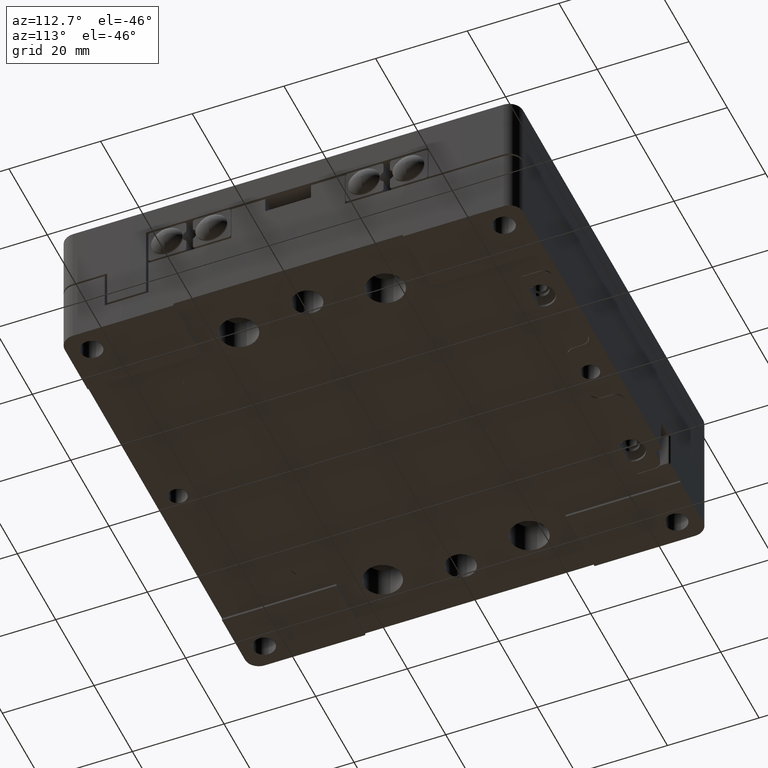
[diagram: clean part render]
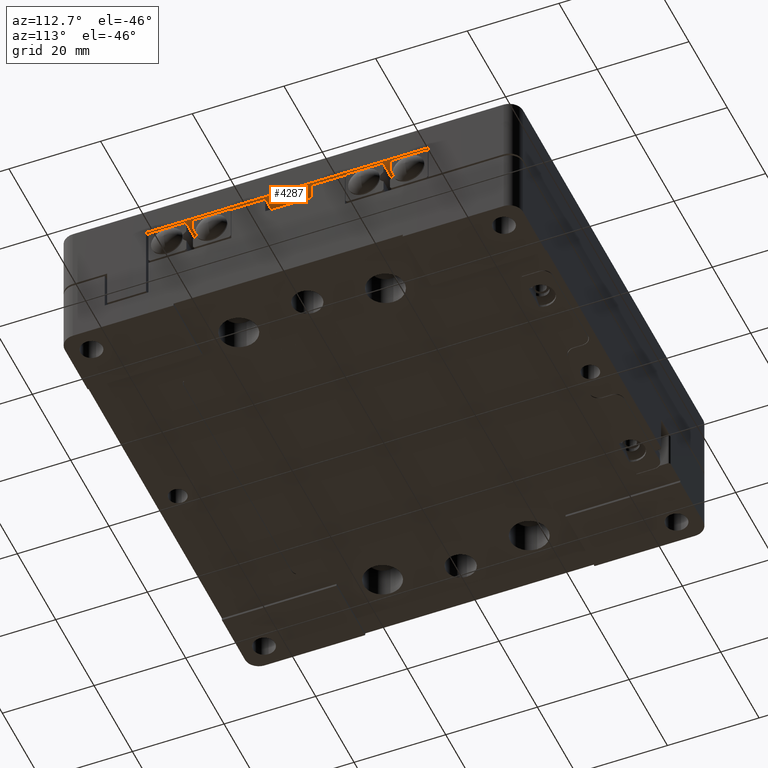
[diagram: same view with one face highlighted and labeled with its STEP entity id]
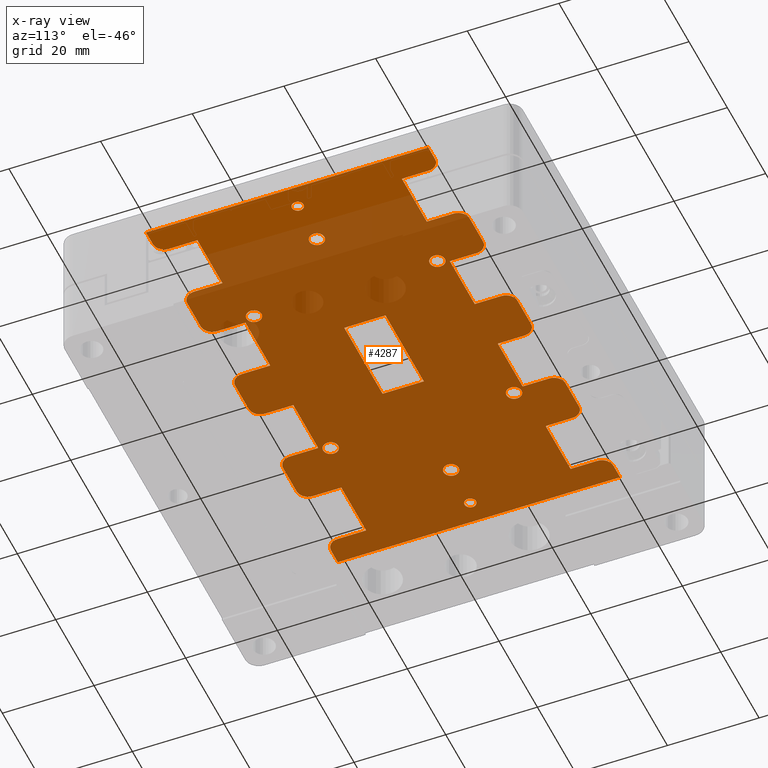
[diagram: x-ray of the same camera — body ghosted, the highlighted face saturated]
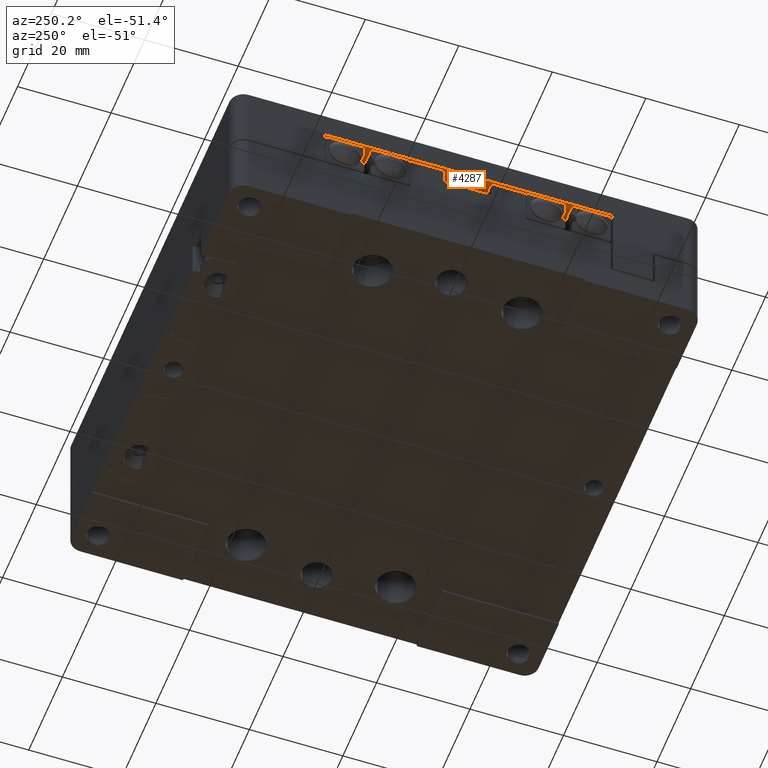
[diagram: same view with one face highlighted and labeled with its STEP entity id]
A machine part, auxiliary view. The second image highlights one B-rep face of the part: STEP entity #4287.
The next image is the same camera in x-ray: the body ghosted, the highlighted face saturated — about 89% of this face is hidden behind the body in this view.
A second angle (auxiliary view) of the same face is appended — the face is thin or edge-on in the first view.
In plain terms, the highlighted planar face has unit normal (0, 0, -1).
Its self-contained STEP definition (entity closure, byte-faithful):
#74 = DIRECTION ( 'NONE',  ( -1.000000000000000000, 0.000000000000000000, 0.000000000000000000 ) ) ;
#96 = DIRECTION ( 'NONE',  ( -1.000000000000000000, 0.000000000000000000, 0.000000000000000000 ) ) ;
#116 = CIRCLE ( 'NONE', #17940, 1.649999999999998579 ) ;
#146 = ORIENTED_EDGE ( 'NONE', *, *, #10678, .T. ) ;
#187 = VECTOR ( 'NONE', #15721, 1000.000000000000000 ) ;
#273 = VERTEX_POINT ( 'NONE', #24749 ) ;
#338 = DIRECTION ( 'NONE',  ( 0.000000000000000000, 0.000000000000000000, -1.000000000000000000 ) ) ;
#382 = LINE ( 'NONE', #7058, #16938 ) ;
#383 = LINE ( 'NONE', #23991, #20046 ) ;
#450 = DIRECTION ( 'NONE',  ( 1.000000000000000000, 0.000000000000000000, 0.000000000000000000 ) ) ;
#545 = ORIENTED_EDGE ( 'NONE', *, *, #12726, .T. ) ;
#651 = CARTESIAN_POINT ( 'NONE',  ( -50.00000000000000000, -22.30000000000000071, 9.000000000000000000 ) ) ;
#661 = VERTEX_POINT ( 'NONE', #9601 ) ;
#681 = VECTOR ( 'NONE', #4337, 1000.000000000000000 ) ;
#721 = DIRECTION ( 'NONE',  ( 1.000000000000000000, 0.000000000000000000, 0.000000000000000000 ) ) ;
#735 = CARTESIAN_POINT ( 'NONE',  ( 50.00000000000000000, -31.00000000000000000, 9.000000000000000000 ) ) ;
#788 = VERTEX_POINT ( 'NONE', #14887 ) ;
#795 = CARTESIAN_POINT ( 'NONE',  ( 46.50000000000000000, 30.59999999999999787, 9.000000000000000000 ) ) ;
#834 = VERTEX_POINT ( 'NONE', #3993 ) ;
#847 = ORIENTED_EDGE ( 'NONE', *, *, #17546, .T. ) ;
#893 = ORIENTED_EDGE ( 'NONE', *, *, #18476, .T. ) ;
#896 = VECTOR ( 'NONE', #26778, 1000.000000000000000 ) ;
#912 = AXIS2_PLACEMENT_3D ( 'NONE', #2799, #17471, #4767 ) ;
#915 = CIRCLE ( 'NONE', #11609, 2.499999999999998668 ) ;
#918 = EDGE_CURVE ( 'NONE', #27422, #19686, #23576, .T. ) ;
#933 = LINE ( 'NONE', #23996, #12259 ) ;
#1055 = ORIENTED_EDGE ( 'NONE', *, *, #27630, .T. ) ;
#1070 = ORIENTED_EDGE ( 'NONE', *, *, #7344, .T. ) ;
#1109 = AXIS2_PLACEMENT_3D ( 'NONE', #20950, #8494, #17005 ) ;
#1141 = VERTEX_POINT ( 'NONE', #9300 ) ;
#1166 = EDGE_CURVE ( 'NONE', #22428, #24520, #3280, .T. ) ;
#1333 = DIRECTION ( 'NONE',  ( -1.000000000000000000, 0.000000000000000000, 0.000000000000000000 ) ) ;
#1336 = DIRECTION ( 'NONE',  ( 0.000000000000000000, 1.000000000000000000, 0.000000000000000000 ) ) ;
#1343 = CARTESIAN_POINT ( 'NONE',  ( -21.50000000000000000, -31.00000000000000000, 9.000000000000000000 ) ) ;
#1445 = CARTESIAN_POINT ( 'NONE',  ( -3.500000000000000000, 30.59999999999999787, 9.000000000000000000 ) ) ;
#1466 = ORIENTED_EDGE ( 'NONE', *, *, #17801, .T. ) ;
#1469 = ORIENTED_EDGE ( 'NONE', *, *, #10199, .T. ) ;
#1529 = DIRECTION ( 'NONE',  ( 0.000000000000000000, 0.000000000000000000, -1.000000000000000000 ) ) ;
#1850 = ORIENTED_EDGE ( 'NONE', *, *, #3730, .T. ) ;
#1913 = DIRECTION ( 'NONE',  ( 0.000000000000000000, 0.000000000000000000, 1.000000000000000000 ) ) ;
#1952 = CIRCLE ( 'NONE', #4174, 1.649999999999998579 ) ;
#2005 = ORIENTED_EDGE ( 'NONE', *, *, #27070, .T. ) ;
#2075 = DIRECTION ( 'NONE',  ( 1.000000000000000000, 0.000000000000000000, 0.000000000000000000 ) ) ;
#2150 = CARTESIAN_POINT ( 'NONE',  ( -31.00000000000000000, -50.00000000000000000, 9.000000000000000000 ) ) ;
#2173 = DIRECTION ( 'NONE',  ( 0.000000000000000000, -1.000000000000000000, 0.000000000000000000 ) ) ;
#2175 = LINE ( 'NONE', #24746, #4423 ) ;
#2224 = CIRCLE ( 'NONE', #912, 1.250000000000001110 ) ;
#2256 = ORIENTED_EDGE ( 'NONE', *, *, #12973, .T. ) ;
#2262 = CARTESIAN_POINT ( 'NONE',  ( 21.50000000000000000, -28.50000000000000000, 9.000000000000000000 ) ) ;
#2404 = CIRCLE ( 'NONE', #7315, 1.250000000000001110 ) ;
#2427 = CIRCLE ( 'NONE', #1109, 2.499999999999998668 ) ;
#2538 = CARTESIAN_POINT ( 'NONE',  ( 6.000000000000000000, -22.30000000000000071, 9.000000000000000000 ) ) ;
#2552 = CARTESIAN_POINT ( 'NONE',  ( -36.64999999999999858, 2.020667218593134974E-16, 9.000000000000000000 ) ) ;
#2579 = CARTESIAN_POINT ( 'NONE',  ( 46.50000000000000000, -31.00000000000000000, 9.000000000000000000 ) ) ;
#2591 = DIRECTION ( 'NONE',  ( 1.000000000000000000, 0.000000000000000000, 0.000000000000000000 ) ) ;
#2709 = VECTOR ( 'NONE', #21203, 1000.000000000000000 ) ;
#2722 = DIRECTION ( 'NONE',  ( 0.000000000000000000, 0.000000000000000000, -1.000000000000000000 ) ) ;
#2733 = ORIENTED_EDGE ( 'NONE', *, *, #13328, .T. ) ;
#2735 = ORIENTED_EDGE ( 'NONE', *, *, #7420, .T. ) ;
#2799 = CARTESIAN_POINT ( 'NONE',  ( 45.00000000000000000, 0.000000000000000000, 9.000000000000000000 ) ) ;
#2858 = CARTESIAN_POINT ( 'NONE',  ( 46.25000000000000000, 1.530808498934190091E-16, 9.000000000000000000 ) ) ;
#2859 = VECTOR ( 'NONE', #721, 1000.000000000000000 ) ;
#2869 = VERTEX_POINT ( 'NONE', #17797 ) ;
#2961 = VECTOR ( 'NONE', #15273, 1000.000000000000000 ) ;
#2999 = VERTEX_POINT ( 'NONE', #8541 ) ;
#3054 = LINE ( 'NONE', #15631, #12775 ) ;
#3069 = CARTESIAN_POINT ( 'NONE',  ( -50.00000000000000000, -31.00000000000000000, 9.000000000000000000 ) ) ;
#3111 = VERTEX_POINT ( 'NONE', #2538 ) ;
#3143 = CARTESIAN_POINT ( 'NONE',  ( 31.00000000000000000, -28.50000000000000000, 9.000000000000000000 ) ) ;
#3153 = EDGE_CURVE ( 'NONE', #6749, #15535, #17764, .T. ) ;
#3155 = DIRECTION ( 'NONE',  ( 0.000000000000000000, 0.000000000000000000, 1.000000000000000000 ) ) ;
#3157 = CIRCLE ( 'NONE', #13843, 1.649999999999998579 ) ;
#3178 = DIRECTION ( 'NONE',  ( 0.000000000000000000, -1.000000000000000000, 0.000000000000000000 ) ) ;
#3199 = CARTESIAN_POINT ( 'NONE',  ( -19.00000000000000000, 28.10000000000000142, 9.000000000000000000 ) ) ;
#3253 = CIRCLE ( 'NONE', #10838, 1.649999999999998579 ) ;
#3280 = LINE ( 'NONE', #26371, #187 ) ;
#3367 = CIRCLE ( 'NONE', #5153, 1.649999999999998579 ) ;
#3400 = ORIENTED_EDGE ( 'NONE', *, *, #14237, .T. ) ;
#3412 = LINE ( 'NONE', #13475, #896 ) ;
#3485 = ORIENTED_EDGE ( 'NONE', *, *, #7486, .T. ) ;
#3548 = DIRECTION ( 'NONE',  ( -1.000000000000000000, 0.000000000000000000, 0.000000000000000000 ) ) ;
#3591 = CARTESIAN_POINT ( 'NONE',  ( -31.00000000000000000, -22.30000000000000071, 9.000000000000000000 ) ) ;
#3601 = DIRECTION ( 'NONE',  ( 0.000000000000000000, -1.000000000000000000, 0.000000000000000000 ) ) ;
#3669 = DIRECTION ( 'NONE',  ( 0.000000000000000000, 0.000000000000000000, -1.000000000000000000 ) ) ;
#3678 = ORIENTED_EDGE ( 'NONE', *, *, #20622, .T. ) ;
#3730 = EDGE_CURVE ( 'NONE', #834, #27422, #16716, .T. ) ;
#3740 = FACE_BOUND ( 'NONE', #12537, .T. ) ;
#3814 = LINE ( 'NONE', #18495, #7718 ) ;
#3923 = VERTEX_POINT ( 'NONE', #20839 ) ;
#3948 = CARTESIAN_POINT ( 'NONE',  ( 31.00000000000000000, -50.00000000000000000, 9.000000000000000000 ) ) ;
#3956 = ORIENTED_EDGE ( 'NONE', *, *, #20305, .T. ) ;
#3976 = CIRCLE ( 'NONE', #22319, 2.500000000000002220 ) ;
#3985 = CARTESIAN_POINT ( 'NONE',  ( 19.00000000000000000, -50.00000000000000000, 9.000000000000000000 ) ) ;
#3993 = CARTESIAN_POINT ( 'NONE',  ( -6.000000000000000000, 28.10000000000000142, 9.000000000000000000 ) ) ;
#3994 = CARTESIAN_POINT ( 'NONE',  ( 44.00000000000000000, 28.10000000000000142, 9.000000000000000000 ) ) ;
#3997 = EDGE_LOOP ( 'NONE', ( #23752, #146 ) ) ;
#4137 = CARTESIAN_POINT ( 'NONE',  ( -35.00000000000000000, 0.000000000000000000, 9.000000000000000000 ) ) ;
#4174 = AXIS2_PLACEMENT_3D ( 'NONE', #20592, #24800, #5627 ) ;
#4205 = LINE ( 'NONE', #4482, #17561 ) ;
#4287 = ADVANCED_FACE ( 'NONE', ( #19108, #3740, #27510, #27103, #21075, #12521, #18561, #16998, #25007, #5834 ), #14348, .T. ) ;
#4337 = DIRECTION ( 'NONE',  ( 1.000000000000000000, 0.000000000000000000, 0.000000000000000000 ) ) ;
#4341 = LINE ( 'NONE', #10768, #5081 ) ;
#4364 = DIRECTION ( 'NONE',  ( 0.000000000000000000, -1.000000000000000000, 0.000000000000000000 ) ) ;
#4403 = DIRECTION ( 'NONE',  ( 0.000000000000000000, 1.000000000000000000, 0.000000000000000000 ) ) ;
#4414 = VERTEX_POINT ( 'NONE', #21493 ) ;
#4423 = VECTOR ( 'NONE', #5580, 1000.000000000000000 ) ;
#4450 = CARTESIAN_POINT ( 'NONE',  ( -50.00000000000000000, -31.00000000000000000, 9.000000000000000000 ) ) ;
#4479 = VERTEX_POINT ( 'NONE', #21642 ) ;
#4482 = CARTESIAN_POINT ( 'NONE',  ( -50.00000000000000000, -31.00000000000000000, 9.000000000000000000 ) ) ;
#4579 = AXIS2_PLACEMENT_3D ( 'NONE', #10975, #25816, #8739 ) ;
#4609 = DIRECTION ( 'NONE',  ( -1.000000000000000000, 0.000000000000000000, 0.000000000000000000 ) ) ;
#4631 = ORIENTED_EDGE ( 'NONE', *, *, #1166, .T. ) ;
#4687 = LINE ( 'NONE', #23419, #18689 ) ;
#4767 = DIRECTION ( 'NONE',  ( -1.000000000000000000, 0.000000000000000000, 0.000000000000000000 ) ) ;
#4806 = CARTESIAN_POINT ( 'NONE',  ( -50.00000000000000000, -22.30000000000000071, 9.000000000000000000 ) ) ;
#4914 = DIRECTION ( 'NONE',  ( -1.000000000000000000, 0.000000000000000000, 0.000000000000000000 ) ) ;
#5081 = VECTOR ( 'NONE', #19293, 1000.000000000000000 ) ;
#5096 = DIRECTION ( 'NONE',  ( 0.000000000000000000, 0.000000000000000000, -1.000000000000000000 ) ) ;
#5104 = DIRECTION ( 'NONE',  ( 1.000000000000000000, 0.000000000000000000, 0.000000000000000000 ) ) ;
#5112 = CARTESIAN_POINT ( 'NONE',  ( -31.00000000000000000, -50.00000000000000000, 9.000000000000000000 ) ) ;
#5153 = AXIS2_PLACEMENT_3D ( 'NONE', #27089, #10152, #22476 ) ;
#5170 = VECTOR ( 'NONE', #9233, 1000.000000000000000 ) ;
#5215 = EDGE_CURVE ( 'NONE', #26739, #2999, #27538, .T. ) ;
#5327 = DIRECTION ( 'NONE',  ( 0.000000000000000000, -1.000000000000000000, 0.000000000000000000 ) ) ;
#5362 = ORIENTED_EDGE ( 'NONE', *, *, #19632, .T. ) ;
#5479 = DIRECTION ( 'NONE',  ( 0.000000000000000000, 0.000000000000000000, 1.000000000000000000 ) ) ;
#5487 = VECTOR ( 'NONE', #7065, 1000.000000000000000 ) ;
#5506 = CARTESIAN_POINT ( 'NONE',  ( 46.50000000000000000, 28.10000000000000142, 9.000000000000000000 ) ) ;
#5573 = CARTESIAN_POINT ( 'NONE',  ( 31.00000000000000000, -22.30000000000000071, 9.000000000000000000 ) ) ;
#5580 = DIRECTION ( 'NONE',  ( 0.000000000000000000, -1.000000000000000000, 0.000000000000000000 ) ) ;
#5610 = EDGE_LOOP ( 'NONE', ( #9266, #14396 ) ) ;
#5627 = DIRECTION ( 'NONE',  ( 1.000000000000000000, 0.000000000000000000, 0.000000000000000000 ) ) ;
#5637 = CARTESIAN_POINT ( 'NONE',  ( -46.25000000000000000, 0.000000000000000000, 9.000000000000000000 ) ) ;
#5641 = CARTESIAN_POINT ( 'NONE',  ( 46.50000000000000000, -28.50000000000000000, 9.000000000000000000 ) ) ;
#5651 = DIRECTION ( 'NONE',  ( 0.000000000000000000, 0.000000000000000000, 1.000000000000000000 ) ) ;
#5674 = CARTESIAN_POINT ( 'NONE',  ( -10.00000000000000000, 4.500000000000000000, 9.000000000000000000 ) ) ;
#5736 = CARTESIAN_POINT ( 'NONE',  ( 19.00000000000000000, -22.30000000000000071, 9.000000000000000000 ) ) ;
#5767 = AXIS2_PLACEMENT_3D ( 'NONE', #5506, #7600, #18235 ) ;
#5834 = FACE_BOUND ( 'NONE', #3997, .T. ) ;
#5852 = EDGE_LOOP ( 'NONE', ( #10848, #893, #14268, #17051 ) ) ;
#6094 = ORIENTED_EDGE ( 'NONE', *, *, #9280, .T. ) ;
#6095 = LINE ( 'NONE', #12647, #2709 ) ;
#6208 = CIRCLE ( 'NONE', #27200, 1.649999999999998579 ) ;
#6247 = EDGE_CURVE ( 'NONE', #16569, #3111, #11240, .T. ) ;
#6296 = DIRECTION ( 'NONE',  ( -1.000000000000000000, 0.000000000000000000, 0.000000000000000000 ) ) ;
#6297 = DIRECTION ( 'NONE',  ( 0.000000000000000000, 0.000000000000000000, -1.000000000000000000 ) ) ;
#6323 = VERTEX_POINT ( 'NONE', #17809 ) ;
#6387 = AXIS2_PLACEMENT_3D ( 'NONE', #21162, #10947, #16947 ) ;
#6414 = VECTOR ( 'NONE', #16083, 1000.000000000000000 ) ;
#6429 = DIRECTION ( 'NONE',  ( 1.000000000000000000, 0.000000000000000000, 0.000000000000000000 ) ) ;
#6584 = DIRECTION ( 'NONE',  ( -1.000000000000000000, 0.000000000000000000, 0.000000000000000000 ) ) ;
#6609 = DIRECTION ( 'NONE',  ( 1.000000000000000000, 0.000000000000000000, 0.000000000000000000 ) ) ;
#6617 = VERTEX_POINT ( 'NONE', #8980 ) ;
#6695 = ORIENTED_EDGE ( 'NONE', *, *, #16384, .T. ) ;
#6712 = CARTESIAN_POINT ( 'NONE',  ( -50.00000000000000000, 22.30000000000000071, 9.000000000000000000 ) ) ;
#6749 = VERTEX_POINT ( 'NONE', #22544 ) ;
#6919 = CIRCLE ( 'NONE', #20710, 2.499999999999998668 ) ;
#6929 = VERTEX_POINT ( 'NONE', #20985 ) ;
#6958 = CARTESIAN_POINT ( 'NONE',  ( -19.00000000000000000, -50.00000000000000000, 9.000000000000000000 ) ) ;
#6971 = VERTEX_POINT ( 'NONE', #18607 ) ;
#6984 = EDGE_LOOP ( 'NONE', ( #1466, #3956 ) ) ;
#7058 = CARTESIAN_POINT ( 'NONE',  ( -6.000000000000000000, -50.00000000000000000, 9.000000000000000000 ) ) ;
#7065 = DIRECTION ( 'NONE',  ( 1.000000000000000000, 0.000000000000000000, 0.000000000000000000 ) ) ;
#7125 = DIRECTION ( 'NONE',  ( 0.000000000000000000, 0.000000000000000000, -1.000000000000000000 ) ) ;
#7130 = ORIENTED_EDGE ( 'NONE', *, *, #27477, .T. ) ;
#7212 = VERTEX_POINT ( 'NONE', #15923 ) ;
#7315 = AXIS2_PLACEMENT_3D ( 'NONE', #24788, #22822, #12172 ) ;
#7341 = CARTESIAN_POINT ( 'NONE',  ( 20.00000000000000000, 20.00000000000000000, 9.000000000000000000 ) ) ;
#7344 = EDGE_CURVE ( 'NONE', #11307, #661, #24529, .T. ) ;
#7399 = ORIENTED_EDGE ( 'NONE', *, *, #15665, .T. ) ;
#7420 = EDGE_CURVE ( 'NONE', #16082, #9689, #2175, .T. ) ;
#7461 = CARTESIAN_POINT ( 'NONE',  ( 35.00000000000000000, 0.000000000000000000, 9.000000000000000000 ) ) ;
#7465 = VECTOR ( 'NONE', #9307, 1000.000000000000000 ) ;
#7486 = EDGE_CURVE ( 'NONE', #9389, #16082, #383, .T. ) ;
#7495 = DIRECTION ( 'NONE',  ( 0.000000000000000000, 1.000000000000000000, 0.000000000000000000 ) ) ;
#7580 = EDGE_LOOP ( 'NONE', ( #545, #4631, #26080, #15764, #8229, #6695, #847, #18346, #9152, #25229, #5362, #22619, #7658, #19489, #1469, #15136, #21009, #22580, #8025, #1055, #24543, #7130, #23316, #14840, #10590, #7399, #24372, #14309, #15142, #2005, #14342, #11293, #8222, #12279, #3400, #1850, #9052, #7802, #18914, #12747, #2733, #9747, #12724, #3678, #23113, #18686, #10661, #6094, #3485, #2735, #7780, #15260 ) ) ;
#7600 = DIRECTION ( 'NONE',  ( 0.000000000000000000, 0.000000000000000000, -1.000000000000000000 ) ) ;
#7617 = VERTEX_POINT ( 'NONE', #1343 ) ;
#7658 = ORIENTED_EDGE ( 'NONE', *, *, #15733, .T. ) ;
#7696 = EDGE_CURVE ( 'NONE', #12786, #16174, #3976, .T. ) ;
#7718 = VECTOR ( 'NONE', #1336, 1000.000000000000000 ) ;
#7754 = ORIENTED_EDGE ( 'NONE', *, *, #25795, .T. ) ;
#7780 = ORIENTED_EDGE ( 'NONE', *, *, #21751, .T. ) ;
#7802 = ORIENTED_EDGE ( 'NONE', *, *, #21572, .T. ) ;
#7949 = CARTESIAN_POINT ( 'NONE',  ( 20.00000000000000000, -20.00000000000000000, 9.000000000000000000 ) ) ;
#7978 = DIRECTION ( 'NONE',  ( 0.000000000000000000, 0.000000000000000000, 1.000000000000000000 ) ) ;
#7988 = EDGE_CURVE ( 'NONE', #12248, #24002, #26768, .T. ) ;
#8002 = CARTESIAN_POINT ( 'NONE',  ( 44.00000000000000000, -28.50000000000000000, 9.000000000000000000 ) ) ;
#8025 = ORIENTED_EDGE ( 'NONE', *, *, #23902, .T. ) ;
#8057 = CARTESIAN_POINT ( 'NONE',  ( 43.75000000000000000, 0.000000000000000000, 9.000000000000000000 ) ) ;
#8092 = VECTOR ( 'NONE', #7495, 1000.000000000000000 ) ;
#8182 = CARTESIAN_POINT ( 'NONE',  ( -46.50000000000000000, 28.10000000000000142, 9.000000000000000000 ) ) ;
#8222 = ORIENTED_EDGE ( 'NONE', *, *, #17351, .T. ) ;
#8229 = ORIENTED_EDGE ( 'NONE', *, *, #9979, .T. ) ;
#8237 = AXIS2_PLACEMENT_3D ( 'NONE', #17108, #2722, #96 ) ;
#8392 = LINE ( 'NONE', #10632, #16725 ) ;
#8465 = DIRECTION ( 'NONE',  ( 0.000000000000000000, -1.000000000000000000, 0.000000000000000000 ) ) ;
#8482 = CARTESIAN_POINT ( 'NONE',  ( -50.00000000000000000, -50.00000000000000000, 9.000000000000000000 ) ) ;
#8494 = DIRECTION ( 'NONE',  ( 0.000000000000000000, 0.000000000000000000, -1.000000000000000000 ) ) ;
#8541 = CARTESIAN_POINT ( 'NONE',  ( 28.50000000000000000, -31.00000000000000000, 9.000000000000000000 ) ) ;
#8546 = LINE ( 'NONE', #23663, #23352 ) ;
#8598 = CARTESIAN_POINT ( 'NONE',  ( -21.64999999999999858, 20.00000000000000000, 9.000000000000000000 ) ) ;
#8739 = DIRECTION ( 'NONE',  ( -1.000000000000000000, 0.000000000000000000, 0.000000000000000000 ) ) ;
#8854 = DIRECTION ( 'NONE',  ( 0.000000000000000000, 0.000000000000000000, -1.000000000000000000 ) ) ;
#8916 = CARTESIAN_POINT ( 'NONE',  ( -31.00000000000000000, 22.30000000000000071, 9.000000000000000000 ) ) ;
#8927 = VERTEX_POINT ( 'NONE', #8916 ) ;
#8980 = CARTESIAN_POINT ( 'NONE',  ( -6.000000000000000000, -22.30000000000000071, 9.000000000000000000 ) ) ;
#9052 = ORIENTED_EDGE ( 'NONE', *, *, #918, .T. ) ;
#9100 = EDGE_LOOP ( 'NONE', ( #7754, #15871 ) ) ;
#9152 = ORIENTED_EDGE ( 'NONE', *, *, #23622, .T. ) ;
#9233 = DIRECTION ( 'NONE',  ( -1.000000000000000000, 0.000000000000000000, 0.000000000000000000 ) ) ;
#9247 = CIRCLE ( 'NONE', #19062, 2.499999999999998668 ) ;
#9266 = ORIENTED_EDGE ( 'NONE', *, *, #14823, .T. ) ;
#9280 = EDGE_CURVE ( 'NONE', #22445, #9389, #15130, .T. ) ;
#9300 = CARTESIAN_POINT ( 'NONE',  ( 19.00000000000000000, 28.10000000000000142, 9.000000000000000000 ) ) ;
#9307 = DIRECTION ( 'NONE',  ( 0.000000000000000000, 1.000000000000000000, 0.000000000000000000 ) ) ;
#9311 = EDGE_CURVE ( 'NONE', #19581, #18730, #3412, .T. ) ;
#9389 = VERTEX_POINT ( 'NONE', #795 ) ;
#9483 = DIRECTION ( 'NONE',  ( -1.000000000000000000, 0.000000000000000000, 0.000000000000000000 ) ) ;
#9589 = LINE ( 'NONE', #6958, #14783 ) ;
#9601 = CARTESIAN_POINT ( 'NONE',  ( 21.64999999999999858, -20.00000000000000000, 9.000000000000000000 ) ) ;
#9656 = AXIS2_PLACEMENT_3D ( 'NONE', #10194, #18311, #20962 ) ;
#9672 = DIRECTION ( 'NONE',  ( 1.000000000000000000, 0.000000000000000000, 0.000000000000000000 ) ) ;
#9683 = EDGE_CURVE ( 'NONE', #10391, #17682, #2224, .T. ) ;
#9689 = VERTEX_POINT ( 'NONE', #735 ) ;
#9694 = DIRECTION ( 'NONE',  ( 1.000000000000000000, 0.000000000000000000, 0.000000000000000000 ) ) ;
#9747 = ORIENTED_EDGE ( 'NONE', *, *, #15146, .T. ) ;
#9979 = EDGE_CURVE ( 'NONE', #2999, #7212, #16603, .T. ) ;
#10026 = CARTESIAN_POINT ( 'NONE',  ( 6.000000000000000000, -50.00000000000000000, 9.000000000000000000 ) ) ;
#10084 = CARTESIAN_POINT ( 'NONE',  ( -20.00000000000000000, 20.00000000000000000, 9.000000000000000000 ) ) ;
#10119 = VERTEX_POINT ( 'NONE', #10880 ) ;
#10152 = DIRECTION ( 'NONE',  ( 0.000000000000000000, 0.000000000000000000, 1.000000000000000000 ) ) ;
#10194 = CARTESIAN_POINT ( 'NONE',  ( -28.50000000000000000, -28.50000000000000000, 9.000000000000000000 ) ) ;
#10199 = EDGE_CURVE ( 'NONE', #25978, #26983, #14207, .T. ) ;
#10260 = VERTEX_POINT ( 'NONE', #3591 ) ;
#10339 = CARTESIAN_POINT ( 'NONE',  ( -44.00000000000000000, -28.50000000000000000, 9.000000000000000000 ) ) ;
#10355 = CARTESIAN_POINT ( 'NONE',  ( -46.50000000000000000, -28.50000000000000000, 9.000000000000000000 ) ) ;
#10391 = VERTEX_POINT ( 'NONE', #8057 ) ;
#10414 = CARTESIAN_POINT ( 'NONE',  ( 6.000000000000000000, -28.50000000000000000, 9.000000000000000000 ) ) ;
#10420 = EDGE_CURVE ( 'NONE', #16097, #11700, #6095, .T. ) ;
#10462 = VECTOR ( 'NONE', #25589, 1000.000000000000000 ) ;
#10590 = ORIENTED_EDGE ( 'NONE', *, *, #13665, .T. ) ;
#10632 = CARTESIAN_POINT ( 'NONE',  ( -50.00000000000000000, -31.00000000000000000, 9.000000000000000000 ) ) ;
#10647 = DIRECTION ( 'NONE',  ( 1.000000000000000000, 0.000000000000000000, 0.000000000000000000 ) ) ;
#10661 = ORIENTED_EDGE ( 'NONE', *, *, #23486, .T. ) ;
#10678 = EDGE_CURVE ( 'NONE', #4479, #273, #3157, .T. ) ;
#10691 = DIRECTION ( 'NONE',  ( -1.000000000000000000, 0.000000000000000000, 0.000000000000000000 ) ) ;
#10759 = DIRECTION ( 'NONE',  ( 1.000000000000000000, 0.000000000000000000, 0.000000000000000000 ) ) ;
#10768 = CARTESIAN_POINT ( 'NONE',  ( -50.00000000000000000, 22.30000000000000071, 9.000000000000000000 ) ) ;
#10807 = ORIENTED_EDGE ( 'NONE', *, *, #19226, .T. ) ;
#10838 = AXIS2_PLACEMENT_3D ( 'NONE', #11675, #3155, #15604 ) ;
#10847 = DIRECTION ( 'NONE',  ( 0.000000000000000000, -1.000000000000000000, 0.000000000000000000 ) ) ;
#10848 = ORIENTED_EDGE ( 'NONE', *, *, #22524, .T. ) ;
#10873 = CARTESIAN_POINT ( 'NONE',  ( -50.00000000000000000, -4.500000000000000000, 9.000000000000000000 ) ) ;
#10880 = CARTESIAN_POINT ( 'NONE',  ( 19.00000000000000000, 22.30000000000000071, 9.000000000000000000 ) ) ;
#10887 = VECTOR ( 'NONE', #5327, 1000.000000000000000 ) ;
#10947 = DIRECTION ( 'NONE',  ( 0.000000000000000000, 0.000000000000000000, 1.000000000000000000 ) ) ;
#10975 = CARTESIAN_POINT ( 'NONE',  ( -45.00000000000000000, 0.000000000000000000, 9.000000000000000000 ) ) ;
#10988 = CARTESIAN_POINT ( 'NONE',  ( -6.000000000000000000, -28.50000000000000000, 9.000000000000000000 ) ) ;
#10995 = CARTESIAN_POINT ( 'NONE',  ( -18.35000000000000142, 20.00000000000000000, 9.000000000000000000 ) ) ;
#11106 = CARTESIAN_POINT ( 'NONE',  ( 6.000000000000000000, 22.30000000000000071, 9.000000000000000000 ) ) ;
#11240 = LINE ( 'NONE', #651, #25338 ) ;
#11293 = ORIENTED_EDGE ( 'NONE', *, *, #15974, .T. ) ;
#11307 = VERTEX_POINT ( 'NONE', #21553 ) ;
#11367 = AXIS2_PLACEMENT_3D ( 'NONE', #14534, #24924, #22819 ) ;
#11404 = CARTESIAN_POINT ( 'NONE',  ( -21.50000000000000000, -28.50000000000000000, 9.000000000000000000 ) ) ;
#11452 = DIRECTION ( 'NONE',  ( 0.000000000000000000, 0.000000000000000000, 1.000000000000000000 ) ) ;
#11522 = VERTEX_POINT ( 'NONE', #26447 ) ;
#11609 = AXIS2_PLACEMENT_3D ( 'NONE', #2262, #338, #19172 ) ;
#11628 = ORIENTED_EDGE ( 'NONE', *, *, #18810, .T. ) ;
#11675 = CARTESIAN_POINT ( 'NONE',  ( 20.00000000000000000, 20.00000000000000000, 9.000000000000000000 ) ) ;
#11689 = VERTEX_POINT ( 'NONE', #12653 ) ;
#11690 = CARTESIAN_POINT ( 'NONE',  ( -28.50000000000000000, 30.59999999999999787, 9.000000000000000000 ) ) ;
#11700 = VERTEX_POINT ( 'NONE', #17126 ) ;
#11878 = EDGE_CURVE ( 'NONE', #788, #17639, #23528, .T. ) ;
#11897 = EDGE_CURVE ( 'NONE', #20099, #6749, #16662, .T. ) ;
#12005 = DIRECTION ( 'NONE',  ( 1.000000000000000000, 0.000000000000000000, 0.000000000000000000 ) ) ;
#12044 = CIRCLE ( 'NONE', #17385, 2.500000000000002220 ) ;
#12172 = DIRECTION ( 'NONE',  ( -1.000000000000000000, 0.000000000000000000, 0.000000000000000000 ) ) ;
#12248 = VERTEX_POINT ( 'NONE', #17690 ) ;
#12259 = VECTOR ( 'NONE', #5104, 1000.000000000000000 ) ;
#12272 = DIRECTION ( 'NONE',  ( 0.000000000000000000, 0.000000000000000000, 1.000000000000000000 ) ) ;
#12274 = VERTEX_POINT ( 'NONE', #10995 ) ;
#12279 = ORIENTED_EDGE ( 'NONE', *, *, #13048, .T. ) ;
#12347 = VECTOR ( 'NONE', #24721, 1000.000000000000000 ) ;
#12393 = EDGE_CURVE ( 'NONE', #273, #4479, #3253, .T. ) ;
#12472 = CARTESIAN_POINT ( 'NONE',  ( -46.50000000000000000, 30.59999999999999787, 9.000000000000000000 ) ) ;
#12512 = LINE ( 'NONE', #27361, #13690 ) ;
#12521 = FACE_BOUND ( 'NONE', #5852, .T. ) ;
#12537 = EDGE_LOOP ( 'NONE', ( #21363, #10807 ) ) ;
#12647 = CARTESIAN_POINT ( 'NONE',  ( -44.00000000000000000, -50.00000000000000000, 9.000000000000000000 ) ) ;
#12653 = CARTESIAN_POINT ( 'NONE',  ( -44.00000000000000000, -22.30000000000000071, 9.000000000000000000 ) ) ;
#12724 = ORIENTED_EDGE ( 'NONE', *, *, #9311, .T. ) ;
#12726 = EDGE_CURVE ( 'NONE', #16174, #22428, #27611, .T. ) ;
#12747 = ORIENTED_EDGE ( 'NONE', *, *, #26824, .T. ) ;
#12753 = AXIS2_PLACEMENT_3D ( 'NONE', #10084, #5479, #9672 ) ;
#12769 = DIRECTION ( 'NONE',  ( -1.000000000000000000, 0.000000000000000000, 0.000000000000000000 ) ) ;
#12775 = VECTOR ( 'NONE', #24447, 1000.000000000000000 ) ;
#12786 = VERTEX_POINT ( 'NONE', #2579 ) ;
#12879 = CARTESIAN_POINT ( 'NONE',  ( 10.00000000000000000, -50.00000000000000000, 9.000000000000000000 ) ) ;
#12908 = DIRECTION ( 'NONE',  ( 0.000000000000000000, 1.000000000000000000, 0.000000000000000000 ) ) ;
#12926 = CARTESIAN_POINT ( 'NONE',  ( -10.00000000000000000, -50.00000000000000000, 9.000000000000000000 ) ) ;
#12973 = EDGE_CURVE ( 'NONE', #24043, #27343, #1952, .T. ) ;
#13048 = EDGE_CURVE ( 'NONE', #23889, #27119, #8546, .T. ) ;
#13270 = LINE ( 'NONE', #17322, #2859 ) ;
#13328 = EDGE_CURVE ( 'NONE', #10119, #1141, #18047, .T. ) ;
#13417 = EDGE_CURVE ( 'NONE', #24520, #26739, #24495, .T. ) ;
#13475 = CARTESIAN_POINT ( 'NONE',  ( -50.00000000000000000, 30.59999999999999787, 9.000000000000000000 ) ) ;
#13527 = EDGE_CURVE ( 'NONE', #14045, #2869, #23487, .T. ) ;
#13665 = EDGE_CURVE ( 'NONE', #6929, #26918, #13270, .T. ) ;
#13690 = VECTOR ( 'NONE', #10847, 1000.000000000000000 ) ;
#13795 = CARTESIAN_POINT ( 'NONE',  ( -19.00000000000000000, -50.00000000000000000, 9.000000000000000000 ) ) ;
#13843 = AXIS2_PLACEMENT_3D ( 'NONE', #7341, #5651, #22724 ) ;
#13971 = CIRCLE ( 'NONE', #19794, 2.500000000000000000 ) ;
#14026 = CIRCLE ( 'NONE', #11367, 2.500000000000000000 ) ;
#14045 = VERTEX_POINT ( 'NONE', #24530 ) ;
#14160 = DIRECTION ( 'NONE',  ( 0.000000000000000000, 0.000000000000000000, -1.000000000000000000 ) ) ;
#14207 = LINE ( 'NONE', #13795, #23220 ) ;
#14237 = EDGE_CURVE ( 'NONE', #27119, #834, #3814, .T. ) ;
#14254 = CARTESIAN_POINT ( 'NONE',  ( 31.00000000000000000, -50.00000000000000000, 9.000000000000000000 ) ) ;
#14268 = ORIENTED_EDGE ( 'NONE', *, *, #11897, .T. ) ;
#14302 = CARTESIAN_POINT ( 'NONE',  ( -19.00000000000000000, -28.50000000000000000, 9.000000000000000000 ) ) ;
#14309 = ORIENTED_EDGE ( 'NONE', *, *, #19702, .T. ) ;
#14341 = LINE ( 'NONE', #10026, #12347 ) ;
#14342 = ORIENTED_EDGE ( 'NONE', *, *, #21739, .T. ) ;
#14348 = PLANE ( 'NONE',  #20408 ) ;
#14396 = ORIENTED_EDGE ( 'NONE', *, *, #14789, .T. ) ;
#14397 = VERTEX_POINT ( 'NONE', #21429 ) ;
#14402 = CARTESIAN_POINT ( 'NONE',  ( 21.50000000000000000, 30.59999999999999787, 9.000000000000000000 ) ) ;
#14527 = CARTESIAN_POINT ( 'NONE',  ( 44.00000000000000000, 22.30000000000000071, 9.000000000000000000 ) ) ;
#14534 = CARTESIAN_POINT ( 'NONE',  ( 3.500000000000000000, 28.10000000000000142, 9.000000000000000000 ) ) ;
#14579 = AXIS2_PLACEMENT_3D ( 'NONE', #4137, #1913, #25829 ) ;
#14659 = AXIS2_PLACEMENT_3D ( 'NONE', #7949, #12272, #12005 ) ;
#14728 = CARTESIAN_POINT ( 'NONE',  ( 44.00000000000000000, -50.00000000000000000, 9.000000000000000000 ) ) ;
#14735 = VERTEX_POINT ( 'NONE', #14527 ) ;
#14782 = VERTEX_POINT ( 'NONE', #10339 ) ;
#14783 = VECTOR ( 'NONE', #24022, 1000.000000000000000 ) ;
#14789 = EDGE_CURVE ( 'NONE', #23765, #14397, #21165, .T. ) ;
#14823 = EDGE_CURVE ( 'NONE', #14397, #23765, #24309, .T. ) ;
#14840 = ORIENTED_EDGE ( 'NONE', *, *, #17352, .T. ) ;
#14887 = CARTESIAN_POINT ( 'NONE',  ( 31.00000000000000000, 28.10000000000000142, 9.000000000000000000 ) ) ;
#14900 = AXIS2_PLACEMENT_3D ( 'NONE', #25594, #15094, #6429 ) ;
#14918 = CARTESIAN_POINT ( 'NONE',  ( -31.00000000000000000, -28.50000000000000000, 9.000000000000000000 ) ) ;
#14985 = CARTESIAN_POINT ( 'NONE',  ( -20.00000000000000000, 20.00000000000000000, 9.000000000000000000 ) ) ;
#14996 = CIRCLE ( 'NONE', #22163, 2.500000000000002220 ) ;
#15091 = VERTEX_POINT ( 'NONE', #3199 ) ;
#15094 = DIRECTION ( 'NONE',  ( 0.000000000000000000, 0.000000000000000000, 1.000000000000000000 ) ) ;
#15114 = EDGE_CURVE ( 'NONE', #7617, #24822, #24468, .T. ) ;
#15130 = CIRCLE ( 'NONE', #5767, 2.500000000000002220 ) ;
#15136 = ORIENTED_EDGE ( 'NONE', *, *, #23943, .T. ) ;
#15142 = ORIENTED_EDGE ( 'NONE', *, *, #19279, .T. ) ;
#15146 = EDGE_CURVE ( 'NONE', #1141, #19581, #2427, .T. ) ;
#15152 = AXIS2_PLACEMENT_3D ( 'NONE', #20468, #5096, #26638 ) ;
#15237 = CARTESIAN_POINT ( 'NONE',  ( -50.00000000000000000, 30.59999999999999787, 9.000000000000000000 ) ) ;
#15260 = ORIENTED_EDGE ( 'NONE', *, *, #7696, .T. ) ;
#15273 = DIRECTION ( 'NONE',  ( -1.000000000000000000, 0.000000000000000000, 0.000000000000000000 ) ) ;
#15478 = AXIS2_PLACEMENT_3D ( 'NONE', #23237, #3669, #1333 ) ;
#15535 = VERTEX_POINT ( 'NONE', #5674 ) ;
#15596 = LINE ( 'NONE', #5112, #7465 ) ;
#15604 = DIRECTION ( 'NONE',  ( 1.000000000000000000, 0.000000000000000000, 0.000000000000000000 ) ) ;
#15609 = LINE ( 'NONE', #26668, #8092 ) ;
#15631 = CARTESIAN_POINT ( 'NONE',  ( 44.00000000000000000, -50.00000000000000000, 9.000000000000000000 ) ) ;
#15646 = CARTESIAN_POINT ( 'NONE',  ( -20.00000000000000000, -20.00000000000000000, 9.000000000000000000 ) ) ;
#15665 = EDGE_CURVE ( 'NONE', #26918, #16097, #12044, .T. ) ;
#15721 = DIRECTION ( 'NONE',  ( -1.000000000000000000, 0.000000000000000000, 0.000000000000000000 ) ) ;
#15733 = EDGE_CURVE ( 'NONE', #24002, #6617, #382, .T. ) ;
#15764 = ORIENTED_EDGE ( 'NONE', *, *, #5215, .T. ) ;
#15784 = CARTESIAN_POINT ( 'NONE',  ( 28.50000000000000000, 28.10000000000000142, 9.000000000000000000 ) ) ;
#15871 = ORIENTED_EDGE ( 'NONE', *, *, #27406, .T. ) ;
#15923 = CARTESIAN_POINT ( 'NONE',  ( 21.50000000000000000, -31.00000000000000000, 9.000000000000000000 ) ) ;
#15974 = EDGE_CURVE ( 'NONE', #3923, #15091, #24999, .T. ) ;
#16082 = VERTEX_POINT ( 'NONE', #24082 ) ;
#16083 = DIRECTION ( 'NONE',  ( 0.000000000000000000, 1.000000000000000000, 0.000000000000000000 ) ) ;
#16097 = VERTEX_POINT ( 'NONE', #25764 ) ;
#16174 = VERTEX_POINT ( 'NONE', #8002 ) ;
#16205 = EDGE_LOOP ( 'NONE', ( #22688, #1070 ) ) ;
#16329 = VERTEX_POINT ( 'NONE', #19732 ) ;
#16384 = EDGE_CURVE ( 'NONE', #7212, #16329, #915, .T. ) ;
#16509 = CARTESIAN_POINT ( 'NONE',  ( -33.34999999999999432, 0.000000000000000000, 9.000000000000000000 ) ) ;
#16569 = VERTEX_POINT ( 'NONE', #5736 ) ;
#16590 = VECTOR ( 'NONE', #25484, 1000.000000000000000 ) ;
#16603 = LINE ( 'NONE', #4450, #22332 ) ;
#16662 = LINE ( 'NONE', #12879, #16590 ) ;
#16716 = CIRCLE ( 'NONE', #8237, 2.500000000000000000 ) ;
#16725 = VECTOR ( 'NONE', #19287, 1000.000000000000000 ) ;
#16938 = VECTOR ( 'NONE', #4403, 1000.000000000000000 ) ;
#16947 = DIRECTION ( 'NONE',  ( -1.000000000000000000, 0.000000000000000000, 0.000000000000000000 ) ) ;
#16998 = FACE_BOUND ( 'NONE', #16205, .T. ) ;
#17004 = CARTESIAN_POINT ( 'NONE',  ( -28.50000000000000000, -31.00000000000000000, 9.000000000000000000 ) ) ;
#17005 = DIRECTION ( 'NONE',  ( -1.000000000000000000, 0.000000000000000000, 0.000000000000000000 ) ) ;
#17032 = CARTESIAN_POINT ( 'NONE',  ( -50.00000000000000000, -31.00000000000000000, 9.000000000000000000 ) ) ;
#17051 = ORIENTED_EDGE ( 'NONE', *, *, #3153, .T. ) ;
#17081 = CARTESIAN_POINT ( 'NONE',  ( -28.50000000000000000, 28.10000000000000142, 9.000000000000000000 ) ) ;
#17108 = CARTESIAN_POINT ( 'NONE',  ( -3.500000000000000000, 28.10000000000000142, 9.000000000000000000 ) ) ;
#17126 = CARTESIAN_POINT ( 'NONE',  ( -44.00000000000000000, 22.30000000000000071, 9.000000000000000000 ) ) ;
#17322 = CARTESIAN_POINT ( 'NONE',  ( -50.00000000000000000, 30.59999999999999787, 9.000000000000000000 ) ) ;
#17351 = EDGE_CURVE ( 'NONE', #15091, #23889, #9589, .T. ) ;
#17352 = EDGE_CURVE ( 'NONE', #2869, #6929, #15609, .T. ) ;
#17374 = CARTESIAN_POINT ( 'NONE',  ( -6.000000000000000000, 22.30000000000000071, 9.000000000000000000 ) ) ;
#17385 = AXIS2_PLACEMENT_3D ( 'NONE', #8182, #18806, #10691 ) ;
#17471 = DIRECTION ( 'NONE',  ( 0.000000000000000000, 0.000000000000000000, 1.000000000000000000 ) ) ;
#17473 = CARTESIAN_POINT ( 'NONE',  ( -50.00000000000000000, -22.30000000000000071, 9.000000000000000000 ) ) ;
#17506 = VECTOR ( 'NONE', #2075, 1000.000000000000000 ) ;
#17535 = DIRECTION ( 'NONE',  ( 0.000000000000000000, 0.000000000000000000, -1.000000000000000000 ) ) ;
#17546 = EDGE_CURVE ( 'NONE', #16329, #16569, #19352, .T. ) ;
#17561 = VECTOR ( 'NONE', #6296, 1000.000000000000000 ) ;
#17637 = DIRECTION ( 'NONE',  ( -1.000000000000000000, 0.000000000000000000, 0.000000000000000000 ) ) ;
#17639 = VERTEX_POINT ( 'NONE', #21890 ) ;
#17641 = CARTESIAN_POINT ( 'NONE',  ( -19.00000000000000000, -22.30000000000000071, 9.000000000000000000 ) ) ;
#17682 = VERTEX_POINT ( 'NONE', #2858 ) ;
#17690 = CARTESIAN_POINT ( 'NONE',  ( -3.500000000000000000, -31.00000000000000000, 9.000000000000000000 ) ) ;
#17764 = LINE ( 'NONE', #24486, #21631 ) ;
#17774 = VERTEX_POINT ( 'NONE', #11106 ) ;
#17779 = CARTESIAN_POINT ( 'NONE',  ( -3.500000000000000000, -28.50000000000000000, 9.000000000000000000 ) ) ;
#17797 = CARTESIAN_POINT ( 'NONE',  ( -50.00000000000000000, -31.00000000000000000, 9.000000000000000000 ) ) ;
#17801 = EDGE_CURVE ( 'NONE', #6323, #11522, #116, .T. ) ;
#17809 = CARTESIAN_POINT ( 'NONE',  ( 36.64999999999999858, 0.000000000000000000, 9.000000000000000000 ) ) ;
#17818 = DIRECTION ( 'NONE',  ( -1.000000000000000000, 0.000000000000000000, 0.000000000000000000 ) ) ;
#17940 = AXIS2_PLACEMENT_3D ( 'NONE', #7461, #22952, #9694 ) ;
#18047 = LINE ( 'NONE', #20704, #6414 ) ;
#18060 = EDGE_CURVE ( 'NONE', #17639, #14735, #21537, .T. ) ;
#18170 = CIRCLE ( 'NONE', #14579, 1.649999999999998579 ) ;
#18235 = DIRECTION ( 'NONE',  ( -1.000000000000000000, 0.000000000000000000, 0.000000000000000000 ) ) ;
#18305 = CARTESIAN_POINT ( 'NONE',  ( 6.000000000000000000, 28.10000000000000142, 9.000000000000000000 ) ) ;
#18311 = DIRECTION ( 'NONE',  ( 0.000000000000000000, 0.000000000000000000, -1.000000000000000000 ) ) ;
#18346 = ORIENTED_EDGE ( 'NONE', *, *, #6247, .T. ) ;
#18476 = EDGE_CURVE ( 'NONE', #6971, #20099, #25711, .T. ) ;
#18495 = CARTESIAN_POINT ( 'NONE',  ( -6.000000000000000000, -50.00000000000000000, 9.000000000000000000 ) ) ;
#18534 = VERTEX_POINT ( 'NONE', #11690 ) ;
#18561 = FACE_BOUND ( 'NONE', #5610, .T. ) ;
#18607 = CARTESIAN_POINT ( 'NONE',  ( -10.00000000000000000, -4.500000000000000000, 9.000000000000000000 ) ) ;
#18686 = ORIENTED_EDGE ( 'NONE', *, *, #18060, .T. ) ;
#18689 = VECTOR ( 'NONE', #2173, 1000.000000000000000 ) ;
#18730 = VERTEX_POINT ( 'NONE', #18809 ) ;
#18806 = DIRECTION ( 'NONE',  ( 0.000000000000000000, 0.000000000000000000, -1.000000000000000000 ) ) ;
#18809 = CARTESIAN_POINT ( 'NONE',  ( 28.50000000000000000, 30.59999999999999787, 9.000000000000000000 ) ) ;
#18810 = EDGE_CURVE ( 'NONE', #25591, #26426, #25129, .T. ) ;
#18844 = VECTOR ( 'NONE', #10759, 1000.000000000000000 ) ;
#18914 = ORIENTED_EDGE ( 'NONE', *, *, #23856, .T. ) ;
#18915 = EDGE_CURVE ( 'NONE', #25083, #4414, #13971, .T. ) ;
#19062 = AXIS2_PLACEMENT_3D ( 'NONE', #11404, #24004, #24278 ) ;
#19108 = FACE_OUTER_BOUND ( 'NONE', #7580, .T. ) ;
#19154 = LINE ( 'NONE', #15237, #681 ) ;
#19172 = DIRECTION ( 'NONE',  ( -1.000000000000000000, 0.000000000000000000, 0.000000000000000000 ) ) ;
#19226 = EDGE_CURVE ( 'NONE', #17682, #10391, #24277, .T. ) ;
#19279 = EDGE_CURVE ( 'NONE', #8927, #23641, #21304, .T. ) ;
#19287 = DIRECTION ( 'NONE',  ( -1.000000000000000000, 0.000000000000000000, 0.000000000000000000 ) ) ;
#19293 = DIRECTION ( 'NONE',  ( 1.000000000000000000, 0.000000000000000000, 0.000000000000000000 ) ) ;
#19324 = DIRECTION ( 'NONE',  ( 0.000000000000000000, 1.000000000000000000, 0.000000000000000000 ) ) ;
#19352 = LINE ( 'NONE', #3985, #26434 ) ;
#19437 = CIRCLE ( 'NONE', #25255, 2.499999999999998668 ) ;
#19452 = EDGE_CURVE ( 'NONE', #26426, #25591, #2404, .T. ) ;
#19461 = DIRECTION ( 'NONE',  ( 0.000000000000000000, 0.000000000000000000, -1.000000000000000000 ) ) ;
#19489 = ORIENTED_EDGE ( 'NONE', *, *, #23006, .T. ) ;
#19581 = VERTEX_POINT ( 'NONE', #14402 ) ;
#19632 = EDGE_CURVE ( 'NONE', #4414, #12248, #4205, .T. ) ;
#19686 = VERTEX_POINT ( 'NONE', #25607 ) ;
#19702 = EDGE_CURVE ( 'NONE', #11700, #8927, #4341, .T. ) ;
#19732 = CARTESIAN_POINT ( 'NONE',  ( 19.00000000000000000, -28.50000000000000000, 9.000000000000000000 ) ) ;
#19773 = EDGE_LOOP ( 'NONE', ( #21869, #2256 ) ) ;
#19794 = AXIS2_PLACEMENT_3D ( 'NONE', #26232, #17535, #17818 ) ;
#20046 = VECTOR ( 'NONE', #2591, 1000.000000000000000 ) ;
#20099 = VERTEX_POINT ( 'NONE', #26605 ) ;
#20132 = LINE ( 'NONE', #17473, #5170 ) ;
#20226 = CARTESIAN_POINT ( 'NONE',  ( -43.75000000000000000, 1.530808498934190091E-16, 9.000000000000000000 ) ) ;
#20305 = EDGE_CURVE ( 'NONE', #11522, #6323, #23414, .T. ) ;
#20319 = VECTOR ( 'NONE', #8465, 1000.000000000000000 ) ;
#20408 = AXIS2_PLACEMENT_3D ( 'NONE', #8482, #1529, #3601 ) ;
#20468 = CARTESIAN_POINT ( 'NONE',  ( -21.50000000000000000, 28.10000000000000142, 9.000000000000000000 ) ) ;
#20592 = CARTESIAN_POINT ( 'NONE',  ( -35.00000000000000000, 0.000000000000000000, 9.000000000000000000 ) ) ;
#20622 = EDGE_CURVE ( 'NONE', #18730, #788, #6919, .T. ) ;
#20704 = CARTESIAN_POINT ( 'NONE',  ( 19.00000000000000000, -50.00000000000000000, 9.000000000000000000 ) ) ;
#20710 = AXIS2_PLACEMENT_3D ( 'NONE', #15784, #7125, #4609 ) ;
#20800 = CARTESIAN_POINT ( 'NONE',  ( -31.00000000000000000, 28.10000000000000142, 9.000000000000000000 ) ) ;
#20839 = CARTESIAN_POINT ( 'NONE',  ( -21.50000000000000000, 30.59999999999999787, 9.000000000000000000 ) ) ;
#20922 = VERTEX_POINT ( 'NONE', #14918 ) ;
#20950 = CARTESIAN_POINT ( 'NONE',  ( 21.50000000000000000, 28.10000000000000142, 9.000000000000000000 ) ) ;
#20962 = DIRECTION ( 'NONE',  ( -1.000000000000000000, 0.000000000000000000, 0.000000000000000000 ) ) ;
#20985 = CARTESIAN_POINT ( 'NONE',  ( -50.00000000000000000, 30.59999999999999787, 9.000000000000000000 ) ) ;
#21009 = ORIENTED_EDGE ( 'NONE', *, *, #15114, .T. ) ;
#21075 = FACE_BOUND ( 'NONE', #6984, .T. ) ;
#21162 = CARTESIAN_POINT ( 'NONE',  ( 45.00000000000000000, 0.000000000000000000, 9.000000000000000000 ) ) ;
#21165 = CIRCLE ( 'NONE', #14900, 1.649999999999998579 ) ;
#21190 = DIRECTION ( 'NONE',  ( 0.000000000000000000, 1.000000000000000000, 0.000000000000000000 ) ) ;
#21203 = DIRECTION ( 'NONE',  ( 0.000000000000000000, -1.000000000000000000, 0.000000000000000000 ) ) ;
#21304 = LINE ( 'NONE', #2150, #22933 ) ;
#21363 = ORIENTED_EDGE ( 'NONE', *, *, #9683, .T. ) ;
#21429 = CARTESIAN_POINT ( 'NONE',  ( -18.35000000000000142, -20.00000000000000000, 9.000000000000000000 ) ) ;
#21493 = CARTESIAN_POINT ( 'NONE',  ( 3.500000000000000000, -31.00000000000000000, 9.000000000000000000 ) ) ;
#21537 = LINE ( 'NONE', #6712, #18844 ) ;
#21553 = CARTESIAN_POINT ( 'NONE',  ( 18.35000000000000142, -20.00000000000000000, 9.000000000000000000 ) ) ;
#21572 = EDGE_CURVE ( 'NONE', #19686, #21879, #14026, .T. ) ;
#21631 = VECTOR ( 'NONE', #4914, 1000.000000000000000 ) ;
#21642 = CARTESIAN_POINT ( 'NONE',  ( 18.35000000000000142, 20.00000000000000000, 9.000000000000000000 ) ) ;
#21708 = CIRCLE ( 'NONE', #12753, 1.649999999999998579 ) ;
#21732 = LINE ( 'NONE', #4806, #2961 ) ;
#21739 = EDGE_CURVE ( 'NONE', #18534, #3923, #19154, .T. ) ;
#21751 = EDGE_CURVE ( 'NONE', #9689, #12786, #8392, .T. ) ;
#21761 = CARTESIAN_POINT ( 'NONE',  ( -50.00000000000000000, 30.59999999999999787, 9.000000000000000000 ) ) ;
#21869 = ORIENTED_EDGE ( 'NONE', *, *, #23754, .T. ) ;
#21879 = VERTEX_POINT ( 'NONE', #18305 ) ;
#21890 = CARTESIAN_POINT ( 'NONE',  ( 31.00000000000000000, 22.30000000000000071, 9.000000000000000000 ) ) ;
#22081 = VECTOR ( 'NONE', #9483, 1000.000000000000000 ) ;
#22163 = AXIS2_PLACEMENT_3D ( 'NONE', #10355, #6297, #6584 ) ;
#22319 = AXIS2_PLACEMENT_3D ( 'NONE', #5641, #14160, #3548 ) ;
#22332 = VECTOR ( 'NONE', #25570, 1000.000000000000000 ) ;
#22350 = EDGE_CURVE ( 'NONE', #661, #11307, #3367, .T. ) ;
#22428 = VERTEX_POINT ( 'NONE', #26818 ) ;
#22445 = VERTEX_POINT ( 'NONE', #3994 ) ;
#22476 = DIRECTION ( 'NONE',  ( 1.000000000000000000, 0.000000000000000000, 0.000000000000000000 ) ) ;
#22524 = EDGE_CURVE ( 'NONE', #15535, #6971, #27353, .T. ) ;
#22537 = AXIS2_PLACEMENT_3D ( 'NONE', #22675, #7978, #23078 ) ;
#22544 = CARTESIAN_POINT ( 'NONE',  ( 10.00000000000000000, 4.500000000000000000, 9.000000000000000000 ) ) ;
#22580 = ORIENTED_EDGE ( 'NONE', *, *, #23150, .T. ) ;
#22619 = ORIENTED_EDGE ( 'NONE', *, *, #7988, .T. ) ;
#22675 = CARTESIAN_POINT ( 'NONE',  ( 35.00000000000000000, 0.000000000000000000, 9.000000000000000000 ) ) ;
#22688 = ORIENTED_EDGE ( 'NONE', *, *, #22350, .T. ) ;
#22724 = DIRECTION ( 'NONE',  ( 1.000000000000000000, 0.000000000000000000, 0.000000000000000000 ) ) ;
#22819 = DIRECTION ( 'NONE',  ( -1.000000000000000000, 0.000000000000000000, 0.000000000000000000 ) ) ;
#22822 = DIRECTION ( 'NONE',  ( 0.000000000000000000, 0.000000000000000000, 1.000000000000000000 ) ) ;
#22865 = VECTOR ( 'NONE', #4364, 1000.000000000000000 ) ;
#22933 = VECTOR ( 'NONE', #19324, 1000.000000000000000 ) ;
#22952 = DIRECTION ( 'NONE',  ( 0.000000000000000000, 0.000000000000000000, 1.000000000000000000 ) ) ;
#22983 = EDGE_LOOP ( 'NONE', ( #11628, #24660 ) ) ;
#23006 = EDGE_CURVE ( 'NONE', #6617, #25978, #21732, .T. ) ;
#23078 = DIRECTION ( 'NONE',  ( 1.000000000000000000, 0.000000000000000000, 0.000000000000000000 ) ) ;
#23113 = ORIENTED_EDGE ( 'NONE', *, *, #11878, .T. ) ;
#23150 = EDGE_CURVE ( 'NONE', #24822, #20922, #25300, .T. ) ;
#23220 = VECTOR ( 'NONE', #3178, 1000.000000000000000 ) ;
#23237 = CARTESIAN_POINT ( 'NONE',  ( 28.50000000000000000, -28.50000000000000000, 9.000000000000000000 ) ) ;
#23316 = ORIENTED_EDGE ( 'NONE', *, *, #13527, .T. ) ;
#23352 = VECTOR ( 'NONE', #10647, 1000.000000000000000 ) ;
#23414 = CIRCLE ( 'NONE', #22537, 1.649999999999998579 ) ;
#23419 = CARTESIAN_POINT ( 'NONE',  ( -44.00000000000000000, -50.00000000000000000, 9.000000000000000000 ) ) ;
#23486 = EDGE_CURVE ( 'NONE', #14735, #22445, #3054, .T. ) ;
#23487 = LINE ( 'NONE', #17032, #10462 ) ;
#23528 = LINE ( 'NONE', #3948, #22865 ) ;
#23532 = DIRECTION ( 'NONE',  ( 0.000000000000000000, 0.000000000000000000, 1.000000000000000000 ) ) ;
#23576 = LINE ( 'NONE', #21761, #5487 ) ;
#23622 = EDGE_CURVE ( 'NONE', #3111, #25083, #14341, .T. ) ;
#23641 = VERTEX_POINT ( 'NONE', #20800 ) ;
#23663 = CARTESIAN_POINT ( 'NONE',  ( -50.00000000000000000, 22.30000000000000071, 9.000000000000000000 ) ) ;
#23724 = CARTESIAN_POINT ( 'NONE',  ( -21.64999999999999858, -20.00000000000000000, 9.000000000000000000 ) ) ;
#23752 = ORIENTED_EDGE ( 'NONE', *, *, #12393, .T. ) ;
#23754 = EDGE_CURVE ( 'NONE', #27343, #24043, #18170, .T. ) ;
#23765 = VERTEX_POINT ( 'NONE', #23724 ) ;
#23856 = EDGE_CURVE ( 'NONE', #21879, #17774, #12512, .T. ) ;
#23889 = VERTEX_POINT ( 'NONE', #26243 ) ;
#23902 = EDGE_CURVE ( 'NONE', #20922, #10260, #15596, .T. ) ;
#23943 = EDGE_CURVE ( 'NONE', #26983, #7617, #9247, .T. ) ;
#23991 = CARTESIAN_POINT ( 'NONE',  ( -50.00000000000000000, 30.59999999999999787, 9.000000000000000000 ) ) ;
#23996 = CARTESIAN_POINT ( 'NONE',  ( -50.00000000000000000, 22.30000000000000071, 9.000000000000000000 ) ) ;
#24002 = VERTEX_POINT ( 'NONE', #10988 ) ;
#24004 = DIRECTION ( 'NONE',  ( 0.000000000000000000, 0.000000000000000000, -1.000000000000000000 ) ) ;
#24022 = DIRECTION ( 'NONE',  ( 0.000000000000000000, -1.000000000000000000, 0.000000000000000000 ) ) ;
#24043 = VERTEX_POINT ( 'NONE', #2552 ) ;
#24082 = CARTESIAN_POINT ( 'NONE',  ( 50.00000000000000000, 30.59999999999999787, 9.000000000000000000 ) ) ;
#24277 = CIRCLE ( 'NONE', #6387, 1.250000000000001110 ) ;
#24278 = DIRECTION ( 'NONE',  ( -1.000000000000000000, 0.000000000000000000, 0.000000000000000000 ) ) ;
#24309 = CIRCLE ( 'NONE', #25642, 1.649999999999998579 ) ;
#24372 = ORIENTED_EDGE ( 'NONE', *, *, #10420, .T. ) ;
#24447 = DIRECTION ( 'NONE',  ( 0.000000000000000000, 1.000000000000000000, 0.000000000000000000 ) ) ;
#24468 = LINE ( 'NONE', #3069, #22081 ) ;
#24486 = CARTESIAN_POINT ( 'NONE',  ( -50.00000000000000000, 4.500000000000000000, 9.000000000000000000 ) ) ;
#24495 = LINE ( 'NONE', #14254, #10887 ) ;
#24520 = VERTEX_POINT ( 'NONE', #5573 ) ;
#24529 = CIRCLE ( 'NONE', #14659, 1.649999999999998579 ) ;
#24530 = CARTESIAN_POINT ( 'NONE',  ( -46.50000000000000000, -31.00000000000000000, 9.000000000000000000 ) ) ;
#24543 = ORIENTED_EDGE ( 'NONE', *, *, #25345, .T. ) ;
#24660 = ORIENTED_EDGE ( 'NONE', *, *, #19452, .T. ) ;
#24721 = DIRECTION ( 'NONE',  ( 0.000000000000000000, -1.000000000000000000, 0.000000000000000000 ) ) ;
#24746 = CARTESIAN_POINT ( 'NONE',  ( 50.00000000000000000, -50.00000000000000000, 9.000000000000000000 ) ) ;
#24749 = CARTESIAN_POINT ( 'NONE',  ( 21.64999999999999858, 20.00000000000000000, 9.000000000000000000 ) ) ;
#24788 = CARTESIAN_POINT ( 'NONE',  ( -45.00000000000000000, 0.000000000000000000, 9.000000000000000000 ) ) ;
#24800 = DIRECTION ( 'NONE',  ( 0.000000000000000000, 0.000000000000000000, 1.000000000000000000 ) ) ;
#24822 = VERTEX_POINT ( 'NONE', #17004 ) ;
#24924 = DIRECTION ( 'NONE',  ( 0.000000000000000000, 0.000000000000000000, -1.000000000000000000 ) ) ;
#24999 = CIRCLE ( 'NONE', #15152, 2.499999999999998668 ) ;
#25007 = FACE_BOUND ( 'NONE', #9100, .T. ) ;
#25083 = VERTEX_POINT ( 'NONE', #10414 ) ;
#25129 = CIRCLE ( 'NONE', #4579, 1.250000000000001110 ) ;
#25229 = ORIENTED_EDGE ( 'NONE', *, *, #18915, .T. ) ;
#25255 = AXIS2_PLACEMENT_3D ( 'NONE', #17081, #8854, #74 ) ;
#25300 = CIRCLE ( 'NONE', #9656, 2.499999999999998668 ) ;
#25338 = VECTOR ( 'NONE', #12769, 1000.000000000000000 ) ;
#25345 = EDGE_CURVE ( 'NONE', #11689, #14782, #4687, .T. ) ;
#25424 = AXIS2_PLACEMENT_3D ( 'NONE', #17779, #19461, #17637 ) ;
#25484 = DIRECTION ( 'NONE',  ( 0.000000000000000000, 1.000000000000000000, 0.000000000000000000 ) ) ;
#25570 = DIRECTION ( 'NONE',  ( -1.000000000000000000, 0.000000000000000000, 0.000000000000000000 ) ) ;
#25589 = DIRECTION ( 'NONE',  ( -1.000000000000000000, 0.000000000000000000, 0.000000000000000000 ) ) ;
#25591 = VERTEX_POINT ( 'NONE', #5637 ) ;
#25594 = CARTESIAN_POINT ( 'NONE',  ( -20.00000000000000000, -20.00000000000000000, 9.000000000000000000 ) ) ;
#25607 = CARTESIAN_POINT ( 'NONE',  ( 3.500000000000000000, 30.59999999999999787, 9.000000000000000000 ) ) ;
#25642 = AXIS2_PLACEMENT_3D ( 'NONE', #15646, #11452, #450 ) ;
#25711 = LINE ( 'NONE', #10873, #17506 ) ;
#25764 = CARTESIAN_POINT ( 'NONE',  ( -44.00000000000000000, 28.10000000000000142, 9.000000000000000000 ) ) ;
#25795 = EDGE_CURVE ( 'NONE', #12274, #26644, #6208, .T. ) ;
#25816 = DIRECTION ( 'NONE',  ( 0.000000000000000000, 0.000000000000000000, 1.000000000000000000 ) ) ;
#25829 = DIRECTION ( 'NONE',  ( 1.000000000000000000, 0.000000000000000000, 0.000000000000000000 ) ) ;
#25978 = VERTEX_POINT ( 'NONE', #17641 ) ;
#26080 = ORIENTED_EDGE ( 'NONE', *, *, #13417, .T. ) ;
#26232 = CARTESIAN_POINT ( 'NONE',  ( 3.500000000000000000, -28.50000000000000000, 9.000000000000000000 ) ) ;
#26243 = CARTESIAN_POINT ( 'NONE',  ( -19.00000000000000000, 22.30000000000000071, 9.000000000000000000 ) ) ;
#26371 = CARTESIAN_POINT ( 'NONE',  ( -50.00000000000000000, -22.30000000000000071, 9.000000000000000000 ) ) ;
#26426 = VERTEX_POINT ( 'NONE', #20226 ) ;
#26434 = VECTOR ( 'NONE', #21190, 1000.000000000000000 ) ;
#26447 = CARTESIAN_POINT ( 'NONE',  ( 33.34999999999999432, 2.020667218593134974E-16, 9.000000000000000000 ) ) ;
#26605 = CARTESIAN_POINT ( 'NONE',  ( 10.00000000000000000, -4.500000000000000000, 9.000000000000000000 ) ) ;
#26638 = DIRECTION ( 'NONE',  ( -1.000000000000000000, 0.000000000000000000, 0.000000000000000000 ) ) ;
#26644 = VERTEX_POINT ( 'NONE', #8598 ) ;
#26668 = CARTESIAN_POINT ( 'NONE',  ( -50.00000000000000000, -50.00000000000000000, 9.000000000000000000 ) ) ;
#26739 = VERTEX_POINT ( 'NONE', #3143 ) ;
#26768 = CIRCLE ( 'NONE', #25424, 2.500000000000000000 ) ;
#26778 = DIRECTION ( 'NONE',  ( 1.000000000000000000, 0.000000000000000000, 0.000000000000000000 ) ) ;
#26818 = CARTESIAN_POINT ( 'NONE',  ( 44.00000000000000000, -22.30000000000000071, 9.000000000000000000 ) ) ;
#26824 = EDGE_CURVE ( 'NONE', #17774, #10119, #933, .T. ) ;
#26918 = VERTEX_POINT ( 'NONE', #12472 ) ;
#26925 = VECTOR ( 'NONE', #12908, 1000.000000000000000 ) ;
#26983 = VERTEX_POINT ( 'NONE', #14302 ) ;
#27070 = EDGE_CURVE ( 'NONE', #23641, #18534, #19437, .T. ) ;
#27089 = CARTESIAN_POINT ( 'NONE',  ( 20.00000000000000000, -20.00000000000000000, 9.000000000000000000 ) ) ;
#27103 = FACE_BOUND ( 'NONE', #19773, .T. ) ;
#27119 = VERTEX_POINT ( 'NONE', #17374 ) ;
#27200 = AXIS2_PLACEMENT_3D ( 'NONE', #14985, #23532, #6609 ) ;
#27343 = VERTEX_POINT ( 'NONE', #16509 ) ;
#27353 = LINE ( 'NONE', #12926, #20319 ) ;
#27361 = CARTESIAN_POINT ( 'NONE',  ( 6.000000000000000000, -50.00000000000000000, 9.000000000000000000 ) ) ;
#27406 = EDGE_CURVE ( 'NONE', #26644, #12274, #21708, .T. ) ;
#27422 = VERTEX_POINT ( 'NONE', #1445 ) ;
#27477 = EDGE_CURVE ( 'NONE', #14782, #14045, #14996, .T. ) ;
#27510 = FACE_BOUND ( 'NONE', #22983, .T. ) ;
#27538 = CIRCLE ( 'NONE', #15478, 2.499999999999998668 ) ;
#27611 = LINE ( 'NONE', #14728, #26925 ) ;
#27630 = EDGE_CURVE ( 'NONE', #10260, #11689, #20132, .T. ) ;